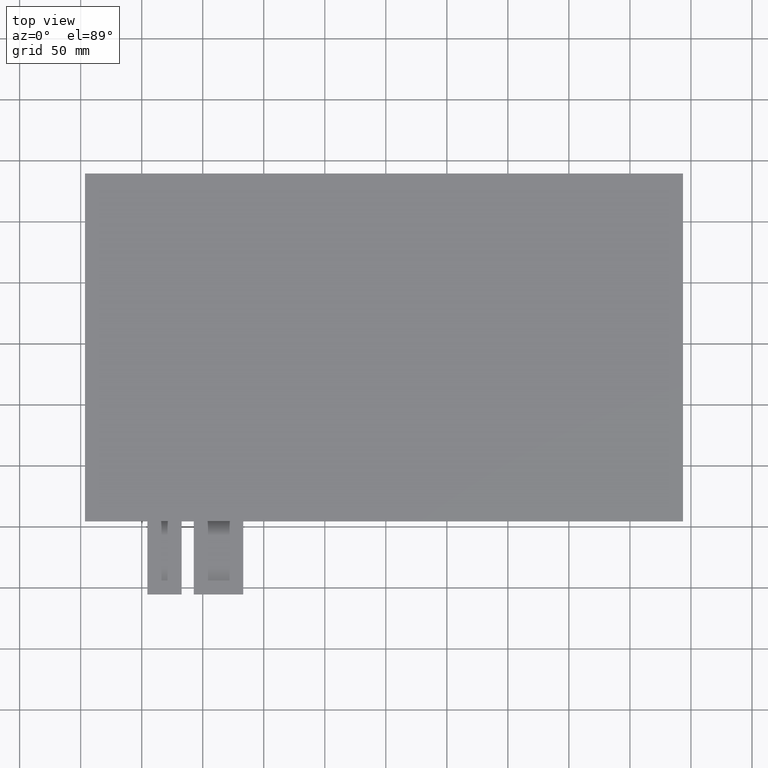
[diagram: clean part render]
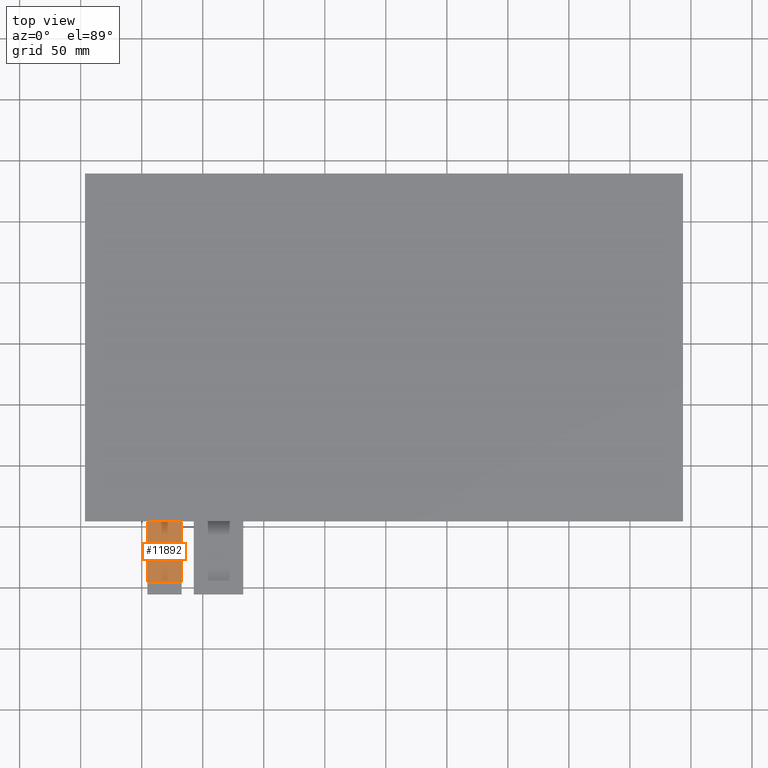
[diagram: same view with one face highlighted and labeled with its STEP entity id]
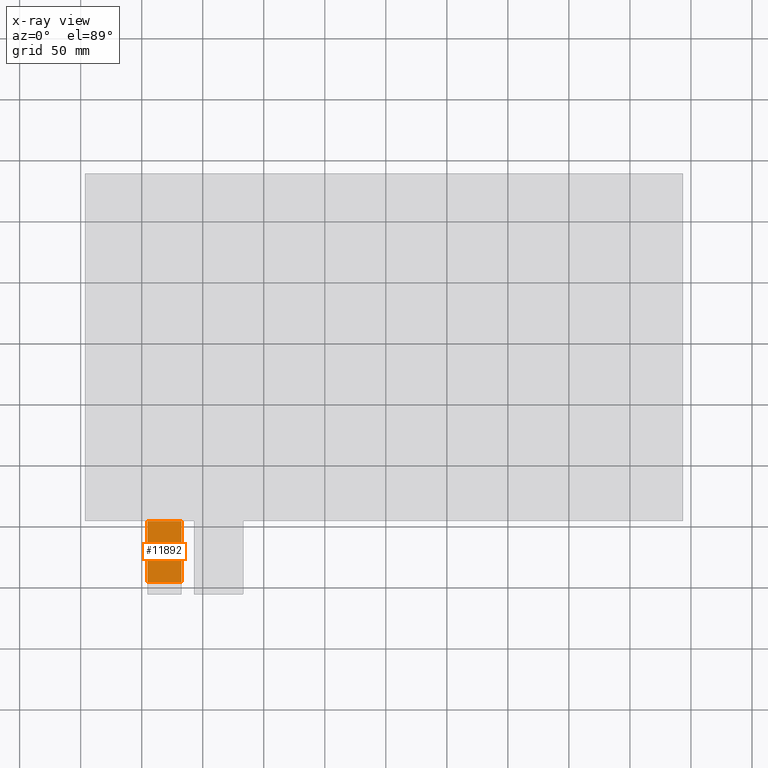
[diagram: x-ray of the same camera — body ghosted, the highlighted face saturated]
A machine part, top view. The second image highlights one B-rep face of the part: STEP entity #11892.
The next image is the same camera in x-ray: the body ghosted, the highlighted face saturated — about 0% of this face is hidden behind the body in this view.
In plain terms, the highlighted planar face has unit normal (0, 0, 1).
Its self-contained STEP definition (entity closure, byte-faithful):
#602=PLANE('',#12488);
#1170=FACE_OUTER_BOUND('',#1738,.T.);
#1738=EDGE_LOOP('',(#11274,#11275,#11276,#11277));
#3399=LINE('',#18655,#5083);
#3412=LINE('',#18681,#5096);
#3416=LINE('',#18689,#5100);
#3417=LINE('',#18690,#5101);
#5083=VECTOR('',#15269,10.);
#5096=VECTOR('',#15292,10.);
#5100=VECTOR('',#15300,10.);
#5101=VECTOR('',#15301,10.);
#6233=VERTEX_POINT('',#18652);
#6234=VERTEX_POINT('',#18654);
#6242=VERTEX_POINT('',#18680);
#6244=VERTEX_POINT('',#18688);
#7911=EDGE_CURVE('',#6234,#6233,#3399,.T.);
#7924=EDGE_CURVE('',#6233,#6242,#3412,.T.);
#7928=EDGE_CURVE('',#6242,#6244,#3416,.T.);
#7929=EDGE_CURVE('',#6234,#6244,#3417,.T.);
#11274=ORIENTED_EDGE('',*,*,#7924,.T.);
#11275=ORIENTED_EDGE('',*,*,#7928,.T.);
#11276=ORIENTED_EDGE('',*,*,#7929,.F.);
#11277=ORIENTED_EDGE('',*,*,#7911,.T.);
#11892=ADVANCED_FACE('',(#1170),#602,.T.);
#12488=AXIS2_PLACEMENT_3D('',#18687,#15298,#15299);
#15269=DIRECTION('',(5.9211894646675E-16,-1.,0.));
#15292=DIRECTION('',(1.,0.,0.));
#15298=DIRECTION('center_axis',(0.,0.,1.));
#15299=DIRECTION('ref_axis',(1.,0.,0.));
#15300=DIRECTION('',(0.,1.,0.));
#15301=DIRECTION('',(1.,1.0875654118777E-16,0.));
#18652=CARTESIAN_POINT('',(-195.35,-195.49,-1.1));
#18654=CARTESIAN_POINT('',(-195.35,-145.49,-1.1));
#18655=CARTESIAN_POINT('',(-195.35,-145.49,-1.1));
#18680=CARTESIAN_POINT('',(-167.35,-195.49,-1.1));
#18681=CARTESIAN_POINT('',(-174.35,-195.49,-1.1));
#18687=CARTESIAN_POINT('Origin',(-181.35,-175.49,-1.1));
#18688=CARTESIAN_POINT('',(-167.35,-145.49,-1.1));
#18689=CARTESIAN_POINT('',(-167.35,-205.49,-1.1));
#18690=CARTESIAN_POINT('',(31.08,-145.49,-1.1));